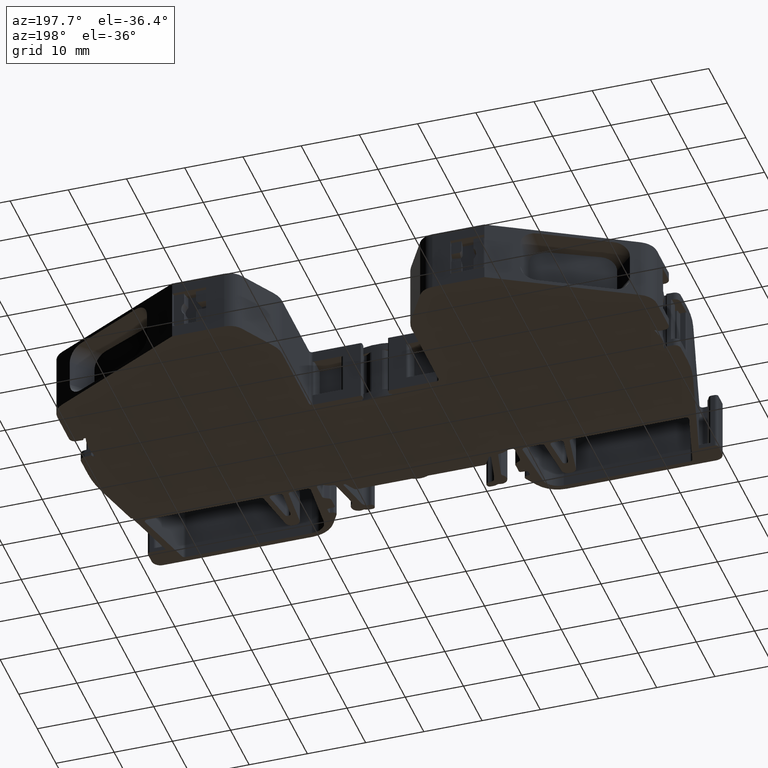
[diagram: clean part render]
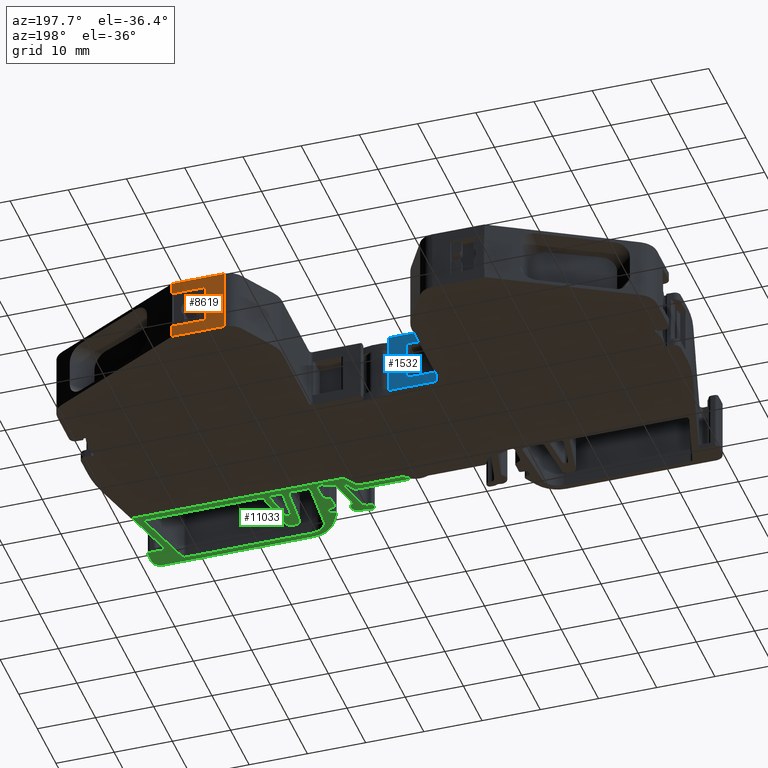
[diagram: same view with three faces highlighted in distinct colors, each labeled with its STEP entity id]
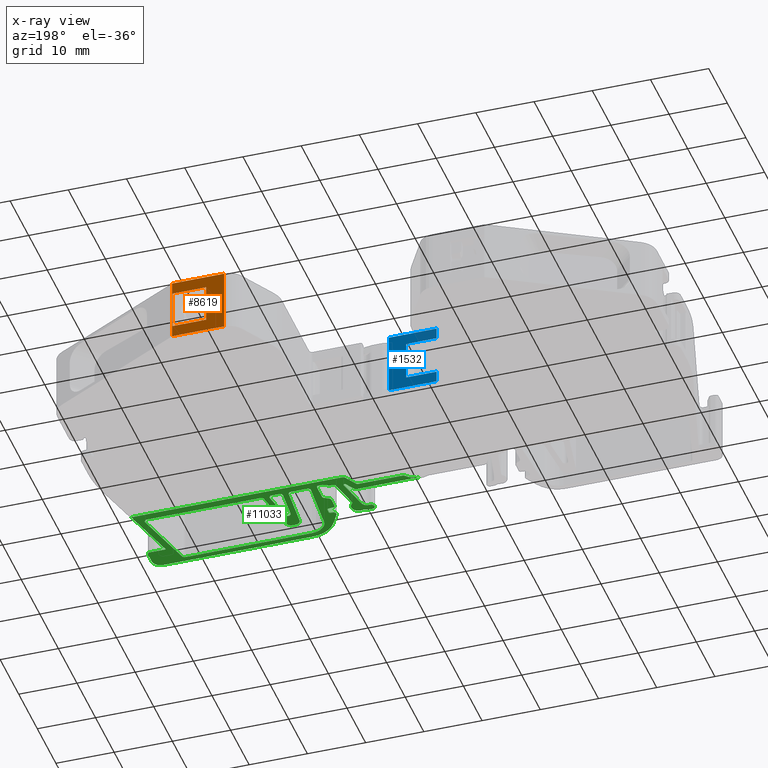
[diagram: x-ray of the same camera — body ghosted, the three highlighted faces saturated]
A machine part, auxiliary view with three faces highlighted in distinct colors.
The next image is the same camera in x-ray (body ghosted, the three faces saturated) — at least one of them is partly hidden behind the body in this view.
Their STEP definitions:

[orange] entity #8619 — the highlighted planar face has unit normal (0, 1, -0).
#1711 = EDGE_CURVE ( 'NONE', #5631, #5627, #15970, .T. ) ;
#1744 = EDGE_CURVE ( 'NONE', #5670, #5626, #16111, .T. ) ;
#1749 = EDGE_CURVE ( 'NONE', #5670, #5631, #16118, .T. ) ;
#1763 = EDGE_CURVE ( 'NONE', #5626, #5627, #16144, .T. ) ;
#3818 = ORIENTED_EDGE ( 'NONE', *, *, #1749, .F. ) ;
#3842 = ORIENTED_EDGE ( 'NONE', *, *, #1711, .F. ) ;
#3844 = ORIENTED_EDGE ( 'NONE', *, *, #11180, .F. ) ;
#3893 = ORIENTED_EDGE ( 'NONE', *, *, #11168, .F. ) ;
#3895 = ORIENTED_EDGE ( 'NONE', *, *, #11215, .F. ) ;
#3934 = ORIENTED_EDGE ( 'NONE', *, *, #1763, .T. ) ;
#3940 = ORIENTED_EDGE ( 'NONE', *, *, #1744, .T. ) ;
#3994 = ORIENTED_EDGE ( 'NONE', *, *, #11141, .T. ) ;
#5153 = EDGE_LOOP ( 'NONE', ( #3934, #3842, #3818, #3940 ) ) ;
#5160 = EDGE_LOOP ( 'NONE', ( #3893, #3895, #3994, #3844 ) ) ;
#5626 = VERTEX_POINT ( 'NONE', #7327 ) ;
#5627 = VERTEX_POINT ( 'NONE', #7281 ) ;
#5631 = VERTEX_POINT ( 'NONE', #7321 ) ;
#5670 = VERTEX_POINT ( 'NONE', #7346 ) ;
#5805 = VERTEX_POINT ( 'NONE', #7412 ) ;
#5839 = VERTEX_POINT ( 'NONE', #7425 ) ;
#5840 = VERTEX_POINT ( 'NONE', #7400 ) ;
#5904 = VERTEX_POINT ( 'NONE', #7495 ) ;
#7281 = CARTESIAN_POINT ( 'NONE',  ( 1356.772827041661900, 454.0739963311599500, 1.950000000000000000 ) ) ;
#7321 = CARTESIAN_POINT ( 'NONE',  ( 1356.772827041661900, 454.0739963311599500, 8.550000000000000700 ) ) ;
#7327 = CARTESIAN_POINT ( 'NONE',  ( 1350.984901664945900, 454.0739963311599500, 1.950000000000000000 ) ) ;
#7346 = CARTESIAN_POINT ( 'NONE',  ( 1350.984901664945900, 454.0739963311599500, 8.550000000000000700 ) ) ;
#7400 = CARTESIAN_POINT ( 'NONE',  ( 1356.825836149942200, 454.0739963311599500, 10.60000000000000000 ) ) ;
#7412 = CARTESIAN_POINT ( 'NONE',  ( 1347.903042648175900, 454.0739963311600000, -0.1000000000000028600 ) ) ;
#7425 = CARTESIAN_POINT ( 'NONE',  ( 1356.825836149942200, 454.0739963311599500, -0.1000000000000000100 ) ) ;
#7495 = CARTESIAN_POINT ( 'NONE',  ( 1347.903042648175900, 454.0739963311600000, 10.59999999999999800 ) ) ;
#8023 = FACE_BOUND ( 'NONE', #5153, .T. ) ;
#8032 = CARTESIAN_POINT ( 'NONE',  ( 1350.550896212335400, 454.0739963311599500, -113.7507434596614900 ) ) ;
#8034 = DIRECTION ( 'NONE',  ( 0.0000000000000000000, 1.000000000000000000, -0.0000000000000000000 ) ) ;
#8036 = DIRECTION ( 'NONE',  ( 0.0000000000000000000, 0.0000000000000000000, 1.000000000000000000 ) ) ;
#8066 = FACE_OUTER_BOUND ( 'NONE', #5160, .T. ) ;
#8067 = PLANE ( 'NONE',  #11679 ) ;
#8619 = ADVANCED_FACE ( 'NONE', ( #8066, #8023 ), #8067, .T. ) ;
#9073 = CARTESIAN_POINT ( 'NONE',  ( 1350.550896212335400, 454.0739963311599500, -0.1000000000000028600 ) ) ;
#9098 = LINE ( 'NONE', #9073, #12158 ) ;
#9100 = DIRECTION ( 'NONE',  ( 1.000000000000000000, 0.0000000000000000000, 0.0000000000000000000 ) ) ;
#11141 = EDGE_CURVE ( 'NONE', #5805, #5904, #15502, .T. ) ;
#11168 = EDGE_CURVE ( 'NONE', #5839, #5840, #15549, .T. ) ;
#11180 = EDGE_CURVE ( 'NONE', #5840, #5904, #15567, .T. ) ;
#11215 = EDGE_CURVE ( 'NONE', #5805, #5839, #9098, .T. ) ;
#11575 = VECTOR ( 'NONE', #15978, 1000.000000000000000 ) ;
#11609 = VECTOR ( 'NONE', #16122, 1000.000000000000000 ) ;
#11611 = VECTOR ( 'NONE', #16125, 1000.000000000000000 ) ;
#11632 = VECTOR ( 'NONE', #16142, 1000.000000000000000 ) ;
#11679 = AXIS2_PLACEMENT_3D ( 'NONE', #8032, #8034, #8036 ) ;
#12059 = VECTOR ( 'NONE', #15473, 1000.000000000000000 ) ;
#12103 = VECTOR ( 'NONE', #15550, 1000.000000000000000 ) ;
#12134 = VECTOR ( 'NONE', #15628, 1000.000000000000000 ) ;
#12158 = VECTOR ( 'NONE', #9100, 1000.000000000000000 ) ;
#15473 = DIRECTION ( 'NONE',  ( 0.0000000000000000000, 0.0000000000000000000, 1.000000000000000000 ) ) ;
#15481 = CARTESIAN_POINT ( 'NONE',  ( 1347.903042648175900, 454.0739963311600000, -113.7507434596614900 ) ) ;
#15502 = LINE ( 'NONE', #15481, #12059 ) ;
#15549 = LINE ( 'NONE', #15566, #12103 ) ;
#15550 = DIRECTION ( 'NONE',  ( 0.0000000000000000000, 0.0000000000000000000, 1.000000000000000000 ) ) ;
#15566 = CARTESIAN_POINT ( 'NONE',  ( 1356.825836149942200, 454.0739963311599500, 0.0000000000000000000 ) ) ;
#15567 = LINE ( 'NONE', #15629, #12134 ) ;
#15628 = DIRECTION ( 'NONE',  ( -1.000000000000000000, 0.0000000000000000000, 0.0000000000000000000 ) ) ;
#15629 = CARTESIAN_POINT ( 'NONE',  ( 1298.507053994932000, 454.0739963311599500, 10.60000000000000000 ) ) ;
#15970 = LINE ( 'NONE', #15984, #11575 ) ;
#15978 = DIRECTION ( 'NONE',  ( 0.0000000000000000000, 0.0000000000000000000, -1.000000000000000000 ) ) ;
#15984 = CARTESIAN_POINT ( 'NONE',  ( 1356.772827041661900, 454.0739963311599500, 500018.1999999999500 ) ) ;
#16090 = CARTESIAN_POINT ( 'NONE',  ( 1350.984901664945900, 454.0739963311599500, 500018.1999999999500 ) ) ;
#16096 = CARTESIAN_POINT ( 'NONE',  ( 1350.984901664945900, 454.0739963311599500, 8.550000000000000700 ) ) ;
#16111 = LINE ( 'NONE', #16090, #11609 ) ;
#16118 = LINE ( 'NONE', #16096, #11611 ) ;
#16122 = DIRECTION ( 'NONE',  ( 0.0000000000000000000, 0.0000000000000000000, -1.000000000000000000 ) ) ;
#16125 = DIRECTION ( 'NONE',  ( 1.000000000000000000, 0.0000000000000000000, 0.0000000000000000000 ) ) ;
#16142 = DIRECTION ( 'NONE',  ( 1.000000000000000000, 0.0000000000000000000, 0.0000000000000000000 ) ) ;
#16144 = LINE ( 'NONE', #16159, #11632 ) ;
#16159 = CARTESIAN_POINT ( 'NONE',  ( 1350.984901664945900, 454.0739963311599500, 1.950000000000000000 ) ) ;

[blue] entity #1532 — the highlighted planar face has unit normal (-0, -1, 0).
#77 = CARTESIAN_POINT ( 'NONE',  ( 1330.007058478346200, 429.0739960545444700, 0.0000000000000000000 ) ) ;
#84 = DIRECTION ( 'NONE',  ( 1.000000000000000000, -5.391711919074419500E-013, 0.0000000000000000000 ) ) ;
#97 = DIRECTION ( 'NONE',  ( -5.391711919074419500E-013, -1.000000000000000000, 0.0000000000000000000 ) ) ;
#107 = PLANE ( 'NONE',  #11853 ) ;
#114 = FACE_OUTER_BOUND ( 'NONE', #5143, .T. ) ;
#1532 = ADVANCED_FACE ( 'NONE', ( #114 ), #107, .F. ) ;
#1703 = EDGE_CURVE ( 'NONE', #5654, #5592, #15996, .T. ) ;
#1714 = EDGE_CURVE ( 'NONE', #5592, #5644, #16004, .T. ) ;
#1767 = EDGE_CURVE ( 'NONE', #5654, #5641, #16146, .T. ) ;
#1901 = VECTOR ( 'NONE', #15352, 1000.000000000000000 ) ;
#1913 = VECTOR ( 'NONE', #15348, 1000.000000000000000 ) ;
#1920 = VECTOR ( 'NONE', #15407, 1000.000000000000000 ) ;
#3701 = ORIENTED_EDGE ( 'NONE', *, *, #1714, .T. ) ;
#3734 = ORIENTED_EDGE ( 'NONE', *, *, #1767, .F. ) ;
#3736 = ORIENTED_EDGE ( 'NONE', *, *, #11184, .F. ) ;
#3748 = ORIENTED_EDGE ( 'NONE', *, *, #11104, .T. ) ;
#3780 = ORIENTED_EDGE ( 'NONE', *, *, #11113, .F. ) ;
#3801 = ORIENTED_EDGE ( 'NONE', *, *, #11100, .F. ) ;
#3869 = ORIENTED_EDGE ( 'NONE', *, *, #11149, .F. ) ;
#3871 = ORIENTED_EDGE ( 'NONE', *, *, #1703, .T. ) ;
#5143 = EDGE_LOOP ( 'NONE', ( #3748, #3869, #3801, #3736, #3780, #3734, #3871, #3701 ) ) ;
#5592 = VERTEX_POINT ( 'NONE', #7235 ) ;
#5641 = VERTEX_POINT ( 'NONE', #7294 ) ;
#5644 = VERTEX_POINT ( 'NONE', #7297 ) ;
#5654 = VERTEX_POINT ( 'NONE', #7317 ) ;
#5719 = VERTEX_POINT ( 'NONE', #7390 ) ;
#5778 = VERTEX_POINT ( 'NONE', #7433 ) ;
#5801 = VERTEX_POINT ( 'NONE', #7418 ) ;
#5824 = VERTEX_POINT ( 'NONE', #7452 ) ;
#7235 = CARTESIAN_POINT ( 'NONE',  ( 1324.635352259573900, 429.0739960545469700, 8.650000000000000400 ) ) ;
#7294 = CARTESIAN_POINT ( 'NONE',  ( 1319.385295467850000, 429.0739963371145200, 1.850000000000000100 ) ) ;
#7297 = CARTESIAN_POINT ( 'NONE',  ( 1319.385295467850000, 429.0739963371145200, 8.650000000000000400 ) ) ;
#7317 = CARTESIAN_POINT ( 'NONE',  ( 1324.635352259573900, 429.0739960545469700, 1.850000000000000100 ) ) ;
#7390 = CARTESIAN_POINT ( 'NONE',  ( 1327.563249270522000, 429.0739960545454900, 10.60000000000000000 ) ) ;
#7418 = CARTESIAN_POINT ( 'NONE',  ( 1319.385295467850000, 429.0739963371145200, 10.60000000000000000 ) ) ;
#7433 = CARTESIAN_POINT ( 'NONE',  ( 1327.563249270522000, 429.0739960545454900, -0.1000000000000000100 ) ) ;
#7452 = CARTESIAN_POINT ( 'NONE',  ( 1319.385295467850000, 429.0739963371145200, -0.09999999999999939500 ) ) ;
#11100 = EDGE_CURVE ( 'NONE', #5778, #5719, #15340, .T. ) ;
#11104 = EDGE_CURVE ( 'NONE', #5644, #5801, #15355, .T. ) ;
#11113 = EDGE_CURVE ( 'NONE', #5641, #5824, #15385, .T. ) ;
#11149 = EDGE_CURVE ( 'NONE', #5719, #5801, #15498, .T. ) ;
#11184 = EDGE_CURVE ( 'NONE', #5824, #5778, #15623, .T. ) ;
#11547 = VECTOR ( 'NONE', #15971, 1000.000000000000000 ) ;
#11574 = VECTOR ( 'NONE', #15986, 1000.000000000000000 ) ;
#11624 = VECTOR ( 'NONE', #16155, 1000.000000000000000 ) ;
#11853 = AXIS2_PLACEMENT_3D ( 'NONE', #77, #97, #84 ) ;
#12065 = VECTOR ( 'NONE', #15482, 1000.000000000000000 ) ;
#12119 = VECTOR ( 'NONE', #15614, 1000.000000000000000 ) ;
#15340 = LINE ( 'NONE', #15360, #1901 ) ;
#15348 = DIRECTION ( 'NONE',  ( 0.0000000000000000000, 0.0000000000000000000, 1.000000000000000000 ) ) ;
#15352 = DIRECTION ( 'NONE',  ( 0.0000000000000000000, 0.0000000000000000000, 1.000000000000000000 ) ) ;
#15355 = LINE ( 'NONE', #15372, #1913 ) ;
#15360 = CARTESIAN_POINT ( 'NONE',  ( 1327.563249270522000, 429.0739960545454900, 0.0000000000000000000 ) ) ;
#15372 = CARTESIAN_POINT ( 'NONE',  ( 1319.385295467850000, 429.0739963371145200, 0.0000000000000000000 ) ) ;
#15385 = LINE ( 'NONE', #15392, #1920 ) ;
#15392 = CARTESIAN_POINT ( 'NONE',  ( 1319.385295467850000, 429.0739963371145200, 10.50000000000000000 ) ) ;
#15407 = DIRECTION ( 'NONE',  ( 0.0000000000000000000, 0.0000000000000000000, -1.000000000000000000 ) ) ;
#15482 = DIRECTION ( 'NONE',  ( -1.000000000000000000, 5.391711919074419500E-013, 0.0000000000000000000 ) ) ;
#15498 = LINE ( 'NONE', #15506, #12065 ) ;
#15506 = CARTESIAN_POINT ( 'NONE',  ( 1330.007058478346200, 429.0739960545444700, 10.60000000000000000 ) ) ;
#15612 = CARTESIAN_POINT ( 'NONE',  ( 1330.007060531894700, 429.0739960545444700, -0.1000000000000000100 ) ) ;
#15614 = DIRECTION ( 'NONE',  ( 1.000000000000000000, -5.391711919074419500E-013, 0.0000000000000000000 ) ) ;
#15623 = LINE ( 'NONE', #15612, #12119 ) ;
#15969 = CARTESIAN_POINT ( 'NONE',  ( 1324.635352259573900, 429.0739960545469700, -11.30269795420121800 ) ) ;
#15971 = DIRECTION ( 'NONE',  ( 0.0000000000000000000, 0.0000000000000000000, 1.000000000000000000 ) ) ;
#15986 = DIRECTION ( 'NONE',  ( -1.000000000000000000, 5.391711919074419500E-013, 0.0000000000000000000 ) ) ;
#15995 = CARTESIAN_POINT ( 'NONE',  ( 1330.007058478346200, 429.0739960545444700, 8.650000000000000400 ) ) ;
#15996 = LINE ( 'NONE', #15969, #11547 ) ;
#16004 = LINE ( 'NONE', #15995, #11574 ) ;
#16146 = LINE ( 'NONE', #16150, #11624 ) ;
#16150 = CARTESIAN_POINT ( 'NONE',  ( 1330.007058478346200, 429.0739960545444700, 1.850000000000000100 ) ) ;
#16155 = DIRECTION ( 'NONE',  ( -1.000000000000000000, 5.391711919074419500E-013, 0.0000000000000000000 ) ) ;

[green] entity #11033 — the highlighted planar face has unit normal (0, 0, -1).
#920 = DIRECTION ( 'NONE',  ( 0.0000000000000000000, 0.0000000000000000000, 1.000000000000000000 ) ) ;
#947 = CARTESIAN_POINT ( 'NONE',  ( 1332.729293080820100, 405.2015322684449600, 0.1499999999999999900 ) ) ;
#963 = DIRECTION ( 'NONE',  ( 1.000000000000000000, 0.0000000000000000000, 0.0000000000000000000 ) ) ;
#975 = LINE ( 'NONE', #989, #10950 ) ;
#976 = CARTESIAN_POINT ( 'NONE',  ( 1340.205312498048000, 406.2015322684449600, 0.1499999999999999900 ) ) ;
#985 = DIRECTION ( 'NONE',  ( 1.000000000000000000, 0.0000000000000000000, 0.0000000000000000000 ) ) ;
#986 = DIRECTION ( 'NONE',  ( -1.000000000000000000, 1.088640402811162000E-014, 0.0000000000000000000 ) ) ;
#989 = CARTESIAN_POINT ( 'NONE',  ( 1340.205312498048000, 405.7015322684449600, 0.1499999999999999900 ) ) ;
#1004 = DIRECTION ( 'NONE',  ( 0.0000000000000000000, 0.0000000000000000000, -1.000000000000000000 ) ) ;
#1139 = LINE ( 'NONE', #1145, #8991 ) ;
#1145 = CARTESIAN_POINT ( 'NONE',  ( 1341.816783949522000, 407.9926677439014500, 0.1499999999999999900 ) ) ;
#1184 = DIRECTION ( 'NONE',  ( -0.5000027472571180200, -0.8660238176489919400, 0.0000000000000000000 ) ) ;
#1319 = DIRECTION ( 'NONE',  ( -1.000000000000000000, 0.0000000000000000000, 0.0000000000000000000 ) ) ;
#1322 = DIRECTION ( 'NONE',  ( -0.0000000000000000000, -0.0000000000000000000, 1.000000000000000000 ) ) ;
#1340 = CARTESIAN_POINT ( 'NONE',  ( 1340.955865043486000, 404.9015270294959800, 0.1500000000000008300 ) ) ;
#1387 = DIRECTION ( 'NONE',  ( 0.0000000000000000000, 0.0000000000000000000, -1.000000000000000000 ) ) ;
#1391 = CARTESIAN_POINT ( 'NONE',  ( 1342.473449871330100, 406.1300494917924800, 0.1500000000000008300 ) ) ;
#1393 = DIRECTION ( 'NONE',  ( -1.000000000000000000, 0.0000000000000000000, 0.0000000000000000000 ) ) ;
#1420 = CARTESIAN_POINT ( 'NONE',  ( 1306.745433194601900, 344.6477605083250100, 0.1500000000000008300 ) ) ;
#1429 = LINE ( 'NONE', #1420, #8524 ) ;
#1430 = DIRECTION ( 'NONE',  ( 0.5000027472573299600, 0.8660238176488696000, 0.0000000000000000000 ) ) ;
#1440 = EDGE_CURVE ( 'NONE', #6439, #6436, #11727, .T. ) ;
#1483 = EDGE_CURVE ( 'NONE', #6418, #6509, #11808, .T. ) ;
#1491 = EDGE_CURVE ( 'NONE', #6403, #6549, #11763, .T. ) ;
#1837 = AXIS2_PLACEMENT_3D ( 'NONE', #15006, #15008, #15016 ) ;
#4496 = AXIS2_PLACEMENT_3D ( 'NONE', #6598, #6586, #6585 ) ;
#4501 = VECTOR ( 'NONE', #6489, 1000.000000000000000 ) ;
#4502 = CIRCLE ( 'NONE', #4504, 1.000000026777359000 ) ;
#4504 = AXIS2_PLACEMENT_3D ( 'NONE', #10546, #10520, #10525 ) ;
#4505 = VECTOR ( 'NONE', #6576, 1000.000000000000000 ) ;
#4511 = AXIS2_PLACEMENT_3D ( 'NONE', #6577, #6556, #6588 ) ;
#4515 = CIRCLE ( 'NONE', #4511, 0.5000000000001669800 ) ;
#4519 = VECTOR ( 'NONE', #6475, 1000.000000000000000 ) ;
#4522 = AXIS2_PLACEMENT_3D ( 'NONE', #6477, #6428, #6492 ) ;
#4527 = CIRCLE ( 'NONE', #4522, 0.5000023835108891000 ) ;
#4551 = VECTOR ( 'NONE', #6426, 1000.000000000000000 ) ;
#4552 = VECTOR ( 'NONE', #6591, 1000.000000000000100 ) ;
#4553 = CIRCLE ( 'NONE', #4555, 4.999999999999893400 ) ;
#4555 = AXIS2_PLACEMENT_3D ( 'NONE', #6580, #6578, #6553 ) ;
#4556 = CIRCLE ( 'NONE', #4496, 0.2999969637338395500 ) ;
#4557 = CIRCLE ( 'NONE', #4583, 0.5000000403820870100 ) ;
#4558 = VECTOR ( 'NONE', #10635, 1000.000000000000000 ) ;
#4559 = CIRCLE ( 'NONE', #4590, 1.250000258073980000 ) ;
#4563 = CIRCLE ( 'NONE', #4596, 0.4999981970457145800 ) ;
#4564 = CIRCLE ( 'NONE', #4597, 0.2000001754571822900 ) ;
#4566 = VECTOR ( 'NONE', #10526, 1000.000000000000200 ) ;
#4567 = AXIS2_PLACEMENT_3D ( 'NONE', #10569, #10593, #10579 ) ;
#4568 = CIRCLE ( 'NONE', #4598, 0.4999998930665938700 ) ;
#4570 = VECTOR ( 'NONE', #10609, 1000.000000000000100 ) ;
#4572 = VECTOR ( 'NONE', #10514, 999.9999999999998900 ) ;
#4574 = AXIS2_PLACEMENT_3D ( 'NONE', #10535, #10523, #10516 ) ;
#4575 = CIRCLE ( 'NONE', #4574, 0.3000001797137663600 ) ;
#4577 = VECTOR ( 'NONE', #10617, 1000.000000000000200 ) ;
#4578 = CIRCLE ( 'NONE', #4589, 0.4999983151467990400 ) ;
#4582 = VECTOR ( 'NONE', #10543, 1000.000000000000000 ) ;
#4583 = AXIS2_PLACEMENT_3D ( 'NONE', #10557, #10527, #10538 ) ;
#4584 = VECTOR ( 'NONE', #10582, 1000.000000000000000 ) ;
#4586 = AXIS2_PLACEMENT_3D ( 'NONE', #10611, #10643, #10621 ) ;
#4588 = AXIS2_PLACEMENT_3D ( 'NONE', #10596, #10597, #10598 ) ;
#4589 = AXIS2_PLACEMENT_3D ( 'NONE', #10519, #10541, #10572 ) ;
#4590 = AXIS2_PLACEMENT_3D ( 'NONE', #10604, #10608, #10633 ) ;
#4596 = AXIS2_PLACEMENT_3D ( 'NONE', #10524, #10549, #10529 ) ;
#4597 = AXIS2_PLACEMENT_3D ( 'NONE', #10570, #10589, #10573 ) ;
#4598 = AXIS2_PLACEMENT_3D ( 'NONE', #10583, #10574, #10585 ) ;
#4599 = VECTOR ( 'NONE', #10616, 999.9999999999998900 ) ;
#4603 = VECTOR ( 'NONE', #10568, 1000.000000000000100 ) ;
#4604 = CIRCLE ( 'NONE', #4605, 0.5000000000001669800 ) ;
#4605 = AXIS2_PLACEMENT_3D ( 'NONE', #10584, #10575, #10560 ) ;
#4607 = VECTOR ( 'NONE', #10612, 1000.000000000000200 ) ;
#4610 = CIRCLE ( 'NONE', #4588, 0.1999999999997559300 ) ;
#4612 = CIRCLE ( 'NONE', #4615, 0.4999976099153702300 ) ;
#4614 = CIRCLE ( 'NONE', #4567, 0.4999999999999449300 ) ;
#4615 = AXIS2_PLACEMENT_3D ( 'NONE', #10588, #10591, #10587 ) ;
#4616 = CIRCLE ( 'NONE', #4586, 3.427201790506817500 ) ;
#4630 = CIRCLE ( 'NONE', #4649, 2.250000040364019700 ) ;
#4634 = AXIS2_PLACEMENT_3D ( 'NONE', #9627, #9625, #9652 ) ;
#4649 = AXIS2_PLACEMENT_3D ( 'NONE', #9615, #9639, #9630 ) ;
#4658 = CIRCLE ( 'NONE', #4672, 0.5035014395204928700 ) ;
#4668 = CIRCLE ( 'NONE', #4634, 1.500000000000056800 ) ;
#4672 = AXIS2_PLACEMENT_3D ( 'NONE', #9740, #9702, #9722 ) ;
#4711 = CIRCLE ( 'NONE', #4717, 0.4999999999999449300 ) ;
#4717 = AXIS2_PLACEMENT_3D ( 'NONE', #9784, #9811, #9790 ) ;
#5350 = EDGE_LOOP ( 'NONE', ( #14056, #14098, #14110, #14116, #14081, #14066, #14092 ) ) ;
#5375 = EDGE_LOOP ( 'NONE', ( #14068, #14072, #14103, #14061, #14085, #14095, #14091, #14064, #14143, #14149, #14178, #14182, #14171, #14120, #14078, #14133, #14163, #14181 ) ) ;
#5378 = EDGE_LOOP ( 'NONE', ( #14029, #14111, #14069, #14058, #14018, #14105, #14087, #14112, #14031, #14115, #14060, #14104, #13999, #14084, #14101, #14106, #14089, #14036, #14021, #14093, #14096, #14073, #14097, #14079, #14099, #14070, #14067, #14107, #14090, #14055, #14094, #14065, #14017, #14062, #14080, #14114, #14088, #14032, #14022, #14000, #14082, #14037, #14059, #14063, #14038, #14083, #14086, #14102, #14100, #14109 ) ) ;
#5444 = CARTESIAN_POINT ( 'NONE',  ( 1342.145435216868000, 399.8311015867765300, 0.1500000000000008300 ) ) ;
#5445 = DIRECTION ( 'NONE',  ( -0.0000000000000000000, -0.0000000000000000000, 1.000000000000000000 ) ) ;
#5489 = DIRECTION ( 'NONE',  ( -1.000000000000000000, 3.108623827146499600E-013, 0.0000000000000000000 ) ) ;
#5552 = DIRECTION ( 'NONE',  ( -0.0000000000000000000, -0.0000000000000000000, 1.000000000000000000 ) ) ;
#5567 = DIRECTION ( 'NONE',  ( -1.000000000000000000, 3.330669073875836700E-013, 0.0000000000000000000 ) ) ;
#5574 = CARTESIAN_POINT ( 'NONE',  ( 1354.755093238640000, 406.4426663702724900, 0.1500000000000008300 ) ) ;
#6004 = VERTEX_POINT ( 'NONE', #7560 ) ;
#6043 = VERTEX_POINT ( 'NONE', #7554 ) ;
#6047 = VERTEX_POINT ( 'NONE', #7539 ) ;
#6055 = VERTEX_POINT ( 'NONE', #7572 ) ;
#6060 = VERTEX_POINT ( 'NONE', #7584 ) ;
#6062 = VERTEX_POINT ( 'NONE', #7615 ) ;
#6063 = VERTEX_POINT ( 'NONE', #7574 ) ;
#6076 = VERTEX_POINT ( 'NONE', #7599 ) ;
#6078 = VERTEX_POINT ( 'NONE', #7620 ) ;
#6082 = VERTEX_POINT ( 'NONE', #7586 ) ;
#6084 = VERTEX_POINT ( 'NONE', #7619 ) ;
#6086 = VERTEX_POINT ( 'NONE', #7600 ) ;
#6088 = VERTEX_POINT ( 'NONE', #7601 ) ;
#6104 = VERTEX_POINT ( 'NONE', #7581 ) ;
#6106 = VERTEX_POINT ( 'NONE', #7625 ) ;
#6116 = VERTEX_POINT ( 'NONE', #7571 ) ;
#6135 = VERTEX_POINT ( 'NONE', #7591 ) ;
#6138 = VERTEX_POINT ( 'NONE', #7593 ) ;
#6142 = VERTEX_POINT ( 'NONE', #7595 ) ;
#6145 = VERTEX_POINT ( 'NONE', #7611 ) ;
#6149 = VERTEX_POINT ( 'NONE', #7614 ) ;
#6151 = VERTEX_POINT ( 'NONE', #7674 ) ;
#6152 = VERTEX_POINT ( 'NONE', #7627 ) ;
#6172 = VERTEX_POINT ( 'NONE', #7665 ) ;
#6203 = VERTEX_POINT ( 'NONE', #7632 ) ;
#6217 = VERTEX_POINT ( 'NONE', #7649 ) ;
#6219 = VERTEX_POINT ( 'NONE', #7668 ) ;
#6230 = VERTEX_POINT ( 'NONE', #7645 ) ;
#6241 = VERTEX_POINT ( 'NONE', #7653 ) ;
#6245 = VERTEX_POINT ( 'NONE', #7680 ) ;
#6335 = VERTEX_POINT ( 'NONE', #7724 ) ;
#6345 = VERTEX_POINT ( 'NONE', #7776 ) ;
#6400 = VERTEX_POINT ( 'NONE', #7782 ) ;
#6403 = VERTEX_POINT ( 'NONE', #7754 ) ;
#6418 = VERTEX_POINT ( 'NONE', #7736 ) ;
#6419 = VERTEX_POINT ( 'NONE', #7758 ) ;
#6422 = LINE ( 'NONE', #6502, #4551 ) ;
#6426 = DIRECTION ( 'NONE',  ( 1.000000000000000000, 1.938070292672565300E-014, 0.0000000000000000000 ) ) ;
#6428 = DIRECTION ( 'NONE',  ( -0.0000000000000000000, -0.0000000000000000000, 1.000000000000000000 ) ) ;
#6436 = VERTEX_POINT ( 'NONE', #7744 ) ;
#6437 = CARTESIAN_POINT ( 'NONE',  ( 1345.809140418024100, 395.8762483638644800, 0.1499999999999999900 ) ) ;
#6439 = VERTEX_POINT ( 'NONE', #7835 ) ;
#6443 = LINE ( 'NONE', #6437, #4519 ) ;
#6475 = DIRECTION ( 'NONE',  ( 0.0000000000000000000, -1.000000000000000000, 0.0000000000000000000 ) ) ;
#6477 = CARTESIAN_POINT ( 'NONE',  ( 1378.505503351194000, 397.5762478239644800, 0.1500000000000008300 ) ) ;
#6487 = CARTESIAN_POINT ( 'NONE',  ( 1347.259686424271900, 331.2175553138799800, 0.1500000000000008300 ) ) ;
#6489 = DIRECTION ( 'NONE',  ( -2.944951164242749900E-013, -1.000000000000000000, 0.0000000000000000000 ) ) ;
#6492 = DIRECTION ( 'NONE',  ( -1.000000000000000000, 0.0000000000000000000, 0.0000000000000000000 ) ) ;
#6502 = CARTESIAN_POINT ( 'NONE',  ( 1330.007060531839900, 394.0762368409450000, 0.1500000000000008300 ) ) ;
#6509 = VERTEX_POINT ( 'NONE', #7831 ) ;
#6519 = LINE ( 'NONE', #6487, #4501 ) ;
#6538 = CARTESIAN_POINT ( 'NONE',  ( 1284.302739126161900, 399.6310997004270000, 0.1499999999999999900 ) ) ;
#6549 = VERTEX_POINT ( 'NONE', #7878 ) ;
#6553 = DIRECTION ( 'NONE',  ( -1.000000000000000000, -1.110223024625180200E-014, 0.0000000000000000000 ) ) ;
#6556 = DIRECTION ( 'NONE',  ( 0.0000000000000000000, 0.0000000000000000000, -1.000000000000000000 ) ) ;
#6560 = CARTESIAN_POINT ( 'NONE',  ( 1338.948460910525900, 383.7615454842788300, 0.1499999999999999900 ) ) ;
#6573 = LINE ( 'NONE', #6560, #4552 ) ;
#6575 = LINE ( 'NONE', #6538, #4505 ) ;
#6576 = DIRECTION ( 'NONE',  ( -1.000000000000000000, 0.0000000000000000000, 0.0000000000000000000 ) ) ;
#6577 = CARTESIAN_POINT ( 'NONE',  ( 1341.591349994545900, 398.1711345781694700, 0.1500000000000008300 ) ) ;
#6578 = DIRECTION ( 'NONE',  ( -0.0000000000000000000, -0.0000000000000000000, 1.000000000000000000 ) ) ;
#6580 = CARTESIAN_POINT ( 'NONE',  ( 1351.807268331745900, 399.0762368409454600, 0.1500000000000008300 ) ) ;
#6585 = DIRECTION ( 'NONE',  ( -1.000000000000000000, 0.0000000000000000000, 0.0000000000000000000 ) ) ;
#6586 = DIRECTION ( 'NONE',  ( -0.0000000000000000000, -0.0000000000000000000, 1.000000000000000000 ) ) ;
#6588 = DIRECTION ( 'NONE',  ( -1.000000000000000000, 0.0000000000000000000, 0.0000000000000000000 ) ) ;
#6591 = DIRECTION ( 'NONE',  ( 0.2164402614427544100, 0.9762958635713827600, 0.0000000000000000000 ) ) ;
#6598 = CARTESIAN_POINT ( 'NONE',  ( 1344.248839326616000, 406.2838827184224900, 0.1500000000000008300 ) ) ;
#7539 = CARTESIAN_POINT ( 'NONE',  ( 1340.205312498048000, 405.7015322684449600, 0.1499999999999999900 ) ) ;
#7554 = CARTESIAN_POINT ( 'NONE',  ( 1353.963924045760200, 398.0762402979685200, 0.1500000000000008300 ) ) ;
#7560 = CARTESIAN_POINT ( 'NONE',  ( 1349.132330078230100, 396.4547189663064700, 0.1500000000000008300 ) ) ;
#7571 = CARTESIAN_POINT ( 'NONE',  ( 1342.249795858346000, 408.2426663702724500, 0.1499999999999999900 ) ) ;
#7572 = CARTESIAN_POINT ( 'NONE',  ( 1378.507058706203500, 408.2426663702729600, 0.1499999999999999900 ) ) ;
#7574 = CARTESIAN_POINT ( 'NONE',  ( 1348.691359069954200, 406.9426663702724900, 0.1500000000000008300 ) ) ;
#7581 = CARTESIAN_POINT ( 'NONE',  ( 1341.816783949522000, 407.9926677439014500, 0.1499999999999999900 ) ) ;
#7584 = CARTESIAN_POINT ( 'NONE',  ( 1352.986550919660000, 406.4079442635670000, 0.1500000000000008300 ) ) ;
#7586 = CARTESIAN_POINT ( 'NONE',  ( 1353.496927466935900, 398.0762402979685200, 0.1500000000000008300 ) ) ;
#7591 = CARTESIAN_POINT ( 'NONE',  ( 1351.656348416310000, 395.0762402979685200, 0.1500000000000008300 ) ) ;
#7593 = CARTESIAN_POINT ( 'NONE',  ( 1351.480503826380300, 406.9426663702724900, 0.1500000000000008300 ) ) ;
#7595 = CARTESIAN_POINT ( 'NONE',  ( 1351.979296744638100, 406.4773884769784900, 0.1500000000000008300 ) ) ;
#7599 = CARTESIAN_POINT ( 'NONE',  ( 1354.755093238638000, 406.9426663702724900, 0.1500000000000008300 ) ) ;
#7600 = CARTESIAN_POINT ( 'NONE',  ( 1352.499341630415800, 399.0067960845575500, 0.1500000000000008300 ) ) ;
#7601 = CARTESIAN_POINT ( 'NONE',  ( 1356.272587265096000, 406.4106499849520400, 0.1500000000000008300 ) ) ;
#7611 = CARTESIAN_POINT ( 'NONE',  ( 1348.819837114173900, 397.3968473904780000, 0.1500000000000008300 ) ) ;
#7614 = CARTESIAN_POINT ( 'NONE',  ( 1348.192566105926100, 406.4079449210380500, 0.1500000000000008300 ) ) ;
#7615 = CARTESIAN_POINT ( 'NONE',  ( 1376.232981779935900, 406.8238270224470100, 0.1500000000000008300 ) ) ;
#7619 = CARTESIAN_POINT ( 'NONE',  ( 1356.764991340202000, 406.8238270224470100, 0.1500000000000008300 ) ) ;
#7620 = CARTESIAN_POINT ( 'NONE',  ( 1373.836242788602200, 395.4463920610965000, 0.1500000000000008300 ) ) ;
#7625 = CARTESIAN_POINT ( 'NONE',  ( 1373.353397642224100, 395.0762402979689800, 0.1500000000000008300 ) ) ;
#7627 = CARTESIAN_POINT ( 'NONE',  ( 1375.783184358594300, 398.0762389074420200, 0.1500000000000003800 ) ) ;
#7632 = CARTESIAN_POINT ( 'NONE',  ( 1353.485343837920000, 406.9426663702724900, 0.1500000000000008300 ) ) ;
#7645 = CARTESIAN_POINT ( 'NONE',  ( 1332.729293080820100, 405.7015322684449600, 0.1499999999999999900 ) ) ;
#7649 = CARTESIAN_POINT ( 'NONE',  ( 1332.340403017100000, 405.5158004951849800, 0.1499999999999999900 ) ) ;
#7653 = CARTESIAN_POINT ( 'NONE',  ( 1378.505499656693900, 398.0762502074615000, 0.1500000000000008300 ) ) ;
#7665 = CARTESIAN_POINT ( 'NONE',  ( 1354.948732195971800, 398.9025943729579900, 0.1500000000000008300 ) ) ;
#7668 = CARTESIAN_POINT ( 'NONE',  ( 1354.337149612566000, 401.1929359822290200, 0.1500000000000008300 ) ) ;
#7674 = CARTESIAN_POINT ( 'NONE',  ( 1340.638324406872000, 405.9515308948165300, 0.1499999999999999900 ) ) ;
#7680 = CARTESIAN_POINT ( 'NONE',  ( 1353.345952619200000, 401.2450368380284500, 0.1500000000000008300 ) ) ;
#7724 = CARTESIAN_POINT ( 'NONE',  ( 1330.033742804432000, 404.4015270294959800, 0.1499999999999999900 ) ) ;
#7736 = CARTESIAN_POINT ( 'NONE',  ( 1355.247497313743900, 406.3558434077675100, 0.1500000000000008300 ) ) ;
#7744 = CARTESIAN_POINT ( 'NONE',  ( 1342.978898438260100, 400.7626807319759300, 0.1500000000000008300 ) ) ;
#7754 = CARTESIAN_POINT ( 'NONE',  ( 1342.673449871329900, 406.1300494917924800, 0.1500000000000008300 ) ) ;
#7758 = CARTESIAN_POINT ( 'NONE',  ( 1376.715947196244100, 406.1944268421899600, 0.1500000000000008300 ) ) ;
#7776 = CARTESIAN_POINT ( 'NONE',  ( 1340.955865043486000, 404.4015270294959800, 0.1500000000000008300 ) ) ;
#7782 = CARTESIAN_POINT ( 'NONE',  ( 1376.732981779935900, 406.3238270224470100, 0.1500000000000008300 ) ) ;
#7831 = CARTESIAN_POINT ( 'NONE',  ( 1355.255093238640000, 406.4426663702724900, 0.1500000000000008300 ) ) ;
#7835 = CARTESIAN_POINT ( 'NONE',  ( 1343.395435474941900, 399.8311015867765300, 0.1500000000000008300 ) ) ;
#7878 = CARTESIAN_POINT ( 'NONE',  ( 1342.668709010580000, 406.0867612885535300, 0.1500000000000008300 ) ) ;
#8391 = VECTOR ( 'NONE', #8936, 1000.000000000000000 ) ;
#8432 = AXIS2_PLACEMENT_3D ( 'NONE', #1391, #1387, #1393 ) ;
#8440 = CIRCLE ( 'NONE', #8458, 0.5000000000001669800 ) ;
#8458 = AXIS2_PLACEMENT_3D ( 'NONE', #1340, #1322, #1319 ) ;
#8487 = CIRCLE ( 'NONE', #8432, 0.1999999999999779700 ) ;
#8524 = VECTOR ( 'NONE', #1430, 1000.000000000000100 ) ;
#8913 = LINE ( 'NONE', #8922, #8391 ) ;
#8922 = CARTESIAN_POINT ( 'NONE',  ( 1330.007060531849900, 398.0762402979714800, 0.1500000000000008300 ) ) ;
#8936 = DIRECTION ( 'NONE',  ( 1.000000000000000000, -1.188684323366580000E-013, 0.0000000000000000000 ) ) ;
#8991 = VECTOR ( 'NONE', #1184, 1000.000000000000200 ) ;
#9130 = LINE ( 'NONE', #9142, #12187 ) ;
#9135 = LINE ( 'NONE', #9148, #12179 ) ;
#9138 = DIRECTION ( 'NONE',  ( -1.000000000000000000, -1.425703166515882100E-014, 0.0000000000000000000 ) ) ;
#9142 = CARTESIAN_POINT ( 'NONE',  ( 1369.106084440662700, 373.1550262100525400, 0.1499999999999999900 ) ) ;
#9148 = CARTESIAN_POINT ( 'NONE',  ( 1284.302739126161700, 406.8238270224458700, 0.1499999999999999900 ) ) ;
#9157 = DIRECTION ( 'NONE',  ( -0.2588002801198385800, -0.9659308541556652600, 0.0000000000000000000 ) ) ;
#9166 = DIRECTION ( 'NONE',  ( -0.0000000000000000000, -0.0000000000000000000, 1.000000000000000000 ) ) ;
#9181 = CARTESIAN_POINT ( 'NONE',  ( 1356.764991340202000, 406.3238270224470100, 0.1500000000000008300 ) ) ;
#9187 = DIRECTION ( 'NONE',  ( -1.000000000000000000, 1.110223024625278800E-013, 0.0000000000000000000 ) ) ;
#9210 = LINE ( 'NONE', #9219, #11894 ) ;
#9211 = DIRECTION ( 'NONE',  ( 0.0000000000000000000, 0.0000000000000000000, -1.000000000000000000 ) ) ;
#9219 = CARTESIAN_POINT ( 'NONE',  ( 1358.084664127140100, 333.1721010028584800, 0.1500000000000008300 ) ) ;
#9220 = DIRECTION ( 'NONE',  ( 0.06944421341129711200, -0.9975858365191870900, 0.0000000000000000000 ) ) ;
#9226 = DIRECTION ( 'NONE',  ( -1.000000000000000000, 0.0000000000000000000, 0.0000000000000000000 ) ) ;
#9244 = CARTESIAN_POINT ( 'NONE',  ( 1353.485343837920000, 406.4426663702724900, 0.1500000000000008300 ) ) ;
#9269 = LINE ( 'NONE', #9270, #11942 ) ;
#9270 = CARTESIAN_POINT ( 'NONE',  ( 1378.507058706204100, 408.2426663702729600, 0.1499999999999999900 ) ) ;
#9271 = DIRECTION ( 'NONE',  ( -1.000000000000000000, -1.224828282580384200E-014, 0.0000000000000000000 ) ) ;
#9381 = DIRECTION ( 'NONE',  ( -1.000000000000000000, 0.0000000000000000000, 0.0000000000000000000 ) ) ;
#9382 = DIRECTION ( 'NONE',  ( 1.000000000000000000, 2.185909723596815000E-013, 0.0000000000000000000 ) ) ;
#9383 = LINE ( 'NONE', #9385, #11959 ) ;
#9384 = DIRECTION ( 'NONE',  ( -1.000000000000000000, 0.0000000000000000000, 0.0000000000000000000 ) ) ;
#9385 = CARTESIAN_POINT ( 'NONE',  ( 1357.087078290613800, 333.1026567894450100, 0.1500000000000008300 ) ) ;
#9389 = DIRECTION ( 'NONE',  ( -0.0000000000000000000, -0.0000000000000000000, 1.000000000000000000 ) ) ;
#9391 = DIRECTION ( 'NONE',  ( 0.1736459250102115600, 0.9848081502137093800, 0.0000000000000000000 ) ) ;
#9392 = LINE ( 'NONE', #9403, #11961 ) ;
#9394 = DIRECTION ( 'NONE',  ( -0.0000000000000000000, -0.0000000000000000000, 1.000000000000000000 ) ) ;
#9396 = CARTESIAN_POINT ( 'NONE',  ( 1350.815008970282200, 397.5357331874144500, 0.1500000000000008300 ) ) ;
#9400 = CARTESIAN_POINT ( 'NONE',  ( 1353.844745537460100, 401.2797589447345100, 0.1500000000000008300 ) ) ;
#9401 = DIRECTION ( 'NONE',  ( -0.0000000000000000000, -0.0000000000000000000, 1.000000000000000000 ) ) ;
#9402 = DIRECTION ( 'NONE',  ( -1.000000000000000000, 0.0000000000000000000, 0.0000000000000000000 ) ) ;
#9403 = CARTESIAN_POINT ( 'NONE',  ( 1354.844534978285800, 324.5628890335035000, 0.1500000000000008300 ) ) ;
#9404 = LINE ( 'NONE', #9416, #11973 ) ;
#9405 = LINE ( 'NONE', #9417, #11993 ) ;
#9406 = DIRECTION ( 'NONE',  ( 0.2588003605137015300, 0.9659308326158648800, 0.0000000000000000000 ) ) ;
#9407 = CARTESIAN_POINT ( 'NONE',  ( 1353.963924045760200, 399.0762402979685200, 0.1500000000000008300 ) ) ;
#9408 = DIRECTION ( 'NONE',  ( 0.1736459250103234700, 0.9848081502136896100, 0.0000000000000000000 ) ) ;
#9409 = LINE ( 'NONE', #9415, #11954 ) ;
#9410 = CARTESIAN_POINT ( 'NONE',  ( 1354.755093238640000, 406.4426663702724900, 0.1500000000000008300 ) ) ;
#9415 = CARTESIAN_POINT ( 'NONE',  ( 1284.302739126159400, 406.9426663702574800, 0.1499999999999999900 ) ) ;
#9416 = CARTESIAN_POINT ( 'NONE',  ( 1341.637182239229800, 329.1668784978755300, 0.1500000000000008300 ) ) ;
#9417 = CARTESIAN_POINT ( 'NONE',  ( 1342.621990389434100, 328.9932325728650000, 0.1500000000000008300 ) ) ;
#9424 = DIRECTION ( 'NONE',  ( -0.0000000000000000000, -0.0000000000000000000, 1.000000000000000000 ) ) ;
#9425 = DIRECTION ( 'NONE',  ( -1.000000000000000000, 1.110223024624785800E-013, 0.0000000000000000000 ) ) ;
#9426 = DIRECTION ( 'NONE',  ( -1.000000000000000000, 0.0000000000000000000, 0.0000000000000000000 ) ) ;
#9443 = DIRECTION ( 'NONE',  ( 0.06944421341122181100, -0.9975858365191923000, 0.0000000000000000000 ) ) ;
#9444 = CARTESIAN_POINT ( 'NONE',  ( 1376.232981779935900, 406.3238270224470100, 0.1500000000000008300 ) ) ;
#9446 = DIRECTION ( 'NONE',  ( -1.000000000000000000, 0.0000000000000000000, 0.0000000000000000000 ) ) ;
#9451 = DIRECTION ( 'NONE',  ( -0.0000000000000000000, -0.0000000000000000000, 1.000000000000000000 ) ) ;
#9460 = DIRECTION ( 'NONE',  ( -0.0000000000000000000, -0.0000000000000000000, 1.000000000000000000 ) ) ;
#9463 = CARTESIAN_POINT ( 'NONE',  ( 1373.353397642224100, 395.5762402979689800, 0.1500000000000008300 ) ) ;
#9471 = DIRECTION ( 'NONE',  ( 0.0000000000000000000, 0.0000000000000000000, -1.000000000000000000 ) ) ;
#9488 = CARTESIAN_POINT ( 'NONE',  ( 1351.656348416310000, 398.0762402979685200, 0.1500000000000008300 ) ) ;
#9490 = CARTESIAN_POINT ( 'NONE',  ( 1351.480503826380300, 406.4426663702724900, 0.1500000000000008300 ) ) ;
#9494 = DIRECTION ( 'NONE',  ( -0.0000000000000000000, -0.0000000000000000000, 1.000000000000000000 ) ) ;
#9499 = DIRECTION ( 'NONE',  ( -1.000000000000000000, 0.0000000000000000000, 0.0000000000000000000 ) ) ;
#9531 = DIRECTION ( 'NONE',  ( -1.000000000000000000, -5.551115123125983400E-014, 0.0000000000000000000 ) ) ;
#9615 = CARTESIAN_POINT ( 'NONE',  ( 1340.467709285127700, 400.6811010676145200, 0.1500000000000008300 ) ) ;
#9625 = DIRECTION ( 'NONE',  ( -0.0000000000000000000, -0.0000000000000000000, 1.000000000000000000 ) ) ;
#9627 = CARTESIAN_POINT ( 'NONE',  ( 1377.505505734704000, 395.5762368409460200, 0.1500000000000008300 ) ) ;
#9630 = DIRECTION ( 'NONE',  ( -1.000000000000000000, 1.480297339610986200E-013, 0.0000000000000000000 ) ) ;
#9639 = DIRECTION ( 'NONE',  ( -0.0000000000000000000, -0.0000000000000000000, 1.000000000000000000 ) ) ;
#9652 = DIRECTION ( 'NONE',  ( -1.000000000000000000, 0.0000000000000000000, 0.0000000000000000000 ) ) ;
#9702 = DIRECTION ( 'NONE',  ( -0.0000000000000000000, -0.0000000000000000000, 1.000000000000000000 ) ) ;
#9722 = DIRECTION ( 'NONE',  ( -1.000000000000000000, 9.922521007231129100E-013, 0.0000000000000000000 ) ) ;
#9740 = CARTESIAN_POINT ( 'NONE',  ( 1346.312641857543900, 402.8577594299050000, 0.1500000000000008300 ) ) ;
#9784 = CARTESIAN_POINT ( 'NONE',  ( 1376.232981779935900, 406.3238270224470100, 0.1500000000000008300 ) ) ;
#9790 = DIRECTION ( 'NONE',  ( -1.000000000000000000, -1.110223024625278800E-013, 0.0000000000000000000 ) ) ;
#9811 = DIRECTION ( 'NONE',  ( -0.0000000000000000000, -0.0000000000000000000, 1.000000000000000000 ) ) ;
#10155 = CARTESIAN_POINT ( 'NONE',  ( 1340.145431779646100, 398.4311010272554700, 0.1500000000000008300 ) ) ;
#10158 = CARTESIAN_POINT ( 'NONE',  ( 1347.259686424291900, 399.7138657706354900, 0.1500000000000008300 ) ) ;
#10169 = CARTESIAN_POINT ( 'NONE',  ( 1339.645438176566100, 398.9310973435399900, 0.1500000000000008300 ) ) ;
#10173 = CARTESIAN_POINT ( 'NONE',  ( 1346.758088127320000, 403.6963345683484500, 0.1500000000000008300 ) ) ;
#10174 = CARTESIAN_POINT ( 'NONE',  ( 1344.223629604930200, 406.5828185780679900, 0.1500000000000008300 ) ) ;
#10176 = CARTESIAN_POINT ( 'NONE',  ( 1346.508090642438000, 407.3111708574604700, 0.1500000000000008300 ) ) ;
#10177 = CARTESIAN_POINT ( 'NONE',  ( 1347.008088957584100, 404.1293462379775300, 0.1500000000000008300 ) ) ;
#10184 = CARTESIAN_POINT ( 'NONE',  ( 1342.824136075780000, 401.2435315397429500, 0.1500000000000008300 ) ) ;
#10185 = CARTESIAN_POINT ( 'NONE',  ( 1339.645436012599900, 399.1310960544280400, 0.1500000000000008300 ) ) ;
#10186 = CARTESIAN_POINT ( 'NONE',  ( 1377.505505734704000, 394.0762368409460200, 0.1500000000000008300 ) ) ;
#10189 = CARTESIAN_POINT ( 'NONE',  ( 1347.077121217542100, 400.6670885489425000, 0.1500000000000008300 ) ) ;
#10190 = CARTESIAN_POINT ( 'NONE',  ( 1346.060892597381800, 403.2938053100675100, 0.1500000000000008300 ) ) ;
#10191 = CARTESIAN_POINT ( 'NONE',  ( 1346.257889449416100, 398.6880382895155300, 0.1500000000000008300 ) ) ;
#10193 = CARTESIAN_POINT ( 'NONE',  ( 1347.008088957584100, 406.8111727121225300, 0.1500000000000008300 ) ) ;
#10195 = CARTESIAN_POINT ( 'NONE',  ( 1343.955953774258000, 406.3488152331529500, 0.1500000000000008300 ) ) ;
#10196 = CARTESIAN_POINT ( 'NONE',  ( 1340.145436012586100, 399.6310997004270000, 0.1500000000000008300 ) ) ;
#10200 = CARTESIAN_POINT ( 'NONE',  ( 1346.230768199054200, 407.3111706435639700, 0.1500000000000008300 ) ) ;
#10201 = CARTESIAN_POINT ( 'NONE',  ( 1341.411232815256200, 400.4146596745040400, 0.1500000000000008300 ) ) ;
#10203 = CARTESIAN_POINT ( 'NONE',  ( 1341.749660413666100, 398.6454106699120000, 0.1500000000000008300 ) ) ;
#10205 = CARTESIAN_POINT ( 'NONE',  ( 1346.082990248493800, 400.7540613590375100, 0.1500000000000008300 ) ) ;
#10209 = CARTESIAN_POINT ( 'NONE',  ( 1379.005505734704000, 395.5762368409460200, 0.1500000000000008300 ) ) ;
#10210 = CARTESIAN_POINT ( 'NONE',  ( 1342.300245107799800, 406.2300500412440000, 0.1500000000000008300 ) ) ;
#10211 = CARTESIAN_POINT ( 'NONE',  ( 1351.807268331748000, 394.0762368409455100, 0.1500000000000008300 ) ) ;
#10215 = CARTESIAN_POINT ( 'NONE',  ( 1341.388876952309800, 404.6515256558675400, 0.1500000000000008300 ) ) ;
#10220 = CARTESIAN_POINT ( 'NONE',  ( 1347.477143735460000, 396.5762326448234500, 0.1500000000000008300 ) ) ;
#10223 = CARTESIAN_POINT ( 'NONE',  ( 1347.259686424291900, 400.4678497674534600, 0.1500000000000008300 ) ) ;
#10232 = CARTESIAN_POINT ( 'NONE',  ( 1340.467714093946100, 398.4311010272554700, 0.1500000000000008300 ) ) ;
#10233 = CARTESIAN_POINT ( 'NONE',  ( 1347.094416335960000, 399.5169042687230100, 0.1500000000000008300 ) ) ;
#10234 = CARTESIAN_POINT ( 'NONE',  ( 1345.938562734736000, 407.2168956166215100, 0.1500000000000008300 ) ) ;
#10242 = CARTESIAN_POINT ( 'NONE',  ( 1345.809140418024100, 402.8577595632414700, 0.1500000000000008300 ) ) ;
#10247 = CARTESIAN_POINT ( 'NONE',  ( 1341.387051686742100, 398.6274921150065300, 0.1500000000000008300 ) ) ;
#10257 = CARTESIAN_POINT ( 'NONE',  ( 1346.604077036840200, 399.4304424475034800, 0.1500000000000008300 ) ) ;
#10258 = CARTESIAN_POINT ( 'NONE',  ( 1379.005505734704000, 397.5762478269489900, 0.1500000000000008300 ) ) ;
#10259 = CARTESIAN_POINT ( 'NONE',  ( 1340.434931498940200, 399.6310997004270000, 0.1500000000000008300 ) ) ;
#10270 = CARTESIAN_POINT ( 'NONE',  ( 1345.809140418024100, 401.0529196315730500, 0.1500000000000008300 ) ) ;
#10514 = DIRECTION ( 'NONE',  ( -0.2164398668385286200, -0.9762959510532245300, 0.0000000000000000000 ) ) ;
#10516 = DIRECTION ( 'NONE',  ( -1.000000000000000000, 0.0000000000000000000, 0.0000000000000000000 ) ) ;
#10519 = CARTESIAN_POINT ( 'NONE',  ( 1346.508090642438000, 406.8111725423135000, 0.1500000000000008300 ) ) ;
#10520 = DIRECTION ( 'NONE',  ( 0.0000000000000000000, 0.0000000000000000000, -1.000000000000000000 ) ) ;
#10521 = LINE ( 'NONE', #10555, #4572 ) ;
#10522 = LINE ( 'NONE', #10536, #4582 ) ;
#10523 = DIRECTION ( 'NONE',  ( -0.0000000000000000000, -0.0000000000000000000, 1.000000000000000000 ) ) ;
#10524 = CARTESIAN_POINT ( 'NONE',  ( 1343.312282128340000, 401.1353112624449900, 0.1500000000000008300 ) ) ;
#10525 = DIRECTION ( 'NONE',  ( -1.000000000000000000, 0.0000000000000000000, 0.0000000000000000000 ) ) ;
#10526 = DIRECTION ( 'NONE',  ( 0.5000008392243019400, -0.8660249192575197900, 0.0000000000000000000 ) ) ;
#10527 = DIRECTION ( 'NONE',  ( -0.0000000000000000000, -0.0000000000000000000, 1.000000000000000000 ) ) ;
#10529 = DIRECTION ( 'NONE',  ( -1.000000000000000000, 0.0000000000000000000, 0.0000000000000000000 ) ) ;
#10535 = CARTESIAN_POINT ( 'NONE',  ( 1346.109140597738100, 401.0529196315730500, 0.1500000000000008300 ) ) ;
#10536 = CARTESIAN_POINT ( 'NONE',  ( 1284.302739126161900, 398.4311010272554700, 0.1499999999999999900 ) ) ;
#10537 = LINE ( 'NONE', #10540, #4603 ) ;
#10538 = DIRECTION ( 'NONE',  ( -1.000000000000000000, 0.0000000000000000000, 0.0000000000000000000 ) ) ;
#10540 = CARTESIAN_POINT ( 'NONE',  ( 1284.302730306537600, 407.3111228789795700, 0.1499999999999999900 ) ) ;
#10541 = DIRECTION ( 'NONE',  ( 0.0000000000000000000, 0.0000000000000000000, -1.000000000000000000 ) ) ;
#10543 = DIRECTION ( 'NONE',  ( 1.000000000000000000, 0.0000000000000000000, 0.0000000000000000000 ) ) ;
#10546 = CARTESIAN_POINT ( 'NONE',  ( 1340.434936877976000, 400.6310997271899600, 0.1500000000000008300 ) ) ;
#10547 = LINE ( 'NONE', #10548, #4566 ) ;
#10548 = CARTESIAN_POINT ( 'NONE',  ( 1371.410777404354100, 355.1220558922405000, 0.1500000000000008300 ) ) ;
#10549 = DIRECTION ( 'NONE',  ( 0.0000000000000000000, 0.0000000000000000000, -1.000000000000000000 ) ) ;
#10555 = CARTESIAN_POINT ( 'NONE',  ( 1337.776907171844000, 384.0212961860718200, 0.1499999999999999900 ) ) ;
#10557 = CARTESIAN_POINT ( 'NONE',  ( 1340.145438216934100, 398.9311010675959900, 0.1500000000000008300 ) ) ;
#10560 = DIRECTION ( 'NONE',  ( -1.000000000000000000, 0.0000000000000000000, 0.0000000000000000000 ) ) ;
#10561 = LINE ( 'NONE', #10566, #4584 ) ;
#10566 = CARTESIAN_POINT ( 'NONE',  ( 1379.005505734704000, 395.8762483638644800, 0.1499999999999999900 ) ) ;
#10568 = DIRECTION ( 'NONE',  ( 0.9999999999997024600, 7.712917461861136300E-007, 0.0000000000000000000 ) ) ;
#10569 = CARTESIAN_POINT ( 'NONE',  ( 1346.690901909046000, 398.9380387091279700, 0.1500000000000008300 ) ) ;
#10570 = CARTESIAN_POINT ( 'NONE',  ( 1347.059686248833900, 400.4678497674534600, 0.1500000000000008300 ) ) ;
#10572 = DIRECTION ( 'NONE',  ( -1.000000000000000000, 0.0000000000000000000, 0.0000000000000000000 ) ) ;
#10573 = DIRECTION ( 'NONE',  ( -1.000000000000000000, 0.0000000000000000000, 0.0000000000000000000 ) ) ;
#10574 = DIRECTION ( 'NONE',  ( 0.0000000000000000000, 0.0000000000000000000, -1.000000000000000000 ) ) ;
#10575 = DIRECTION ( 'NONE',  ( -0.0000000000000000000, -0.0000000000000000000, 1.000000000000000000 ) ) ;
#10578 = LINE ( 'NONE', #10641, #4570 ) ;
#10579 = DIRECTION ( 'NONE',  ( -1.000000000000000000, -5.551115123126393600E-013, 0.0000000000000000000 ) ) ;
#10582 = DIRECTION ( 'NONE',  ( 0.0000000000000000000, -1.000000000000000000, 0.0000000000000000000 ) ) ;
#10583 = CARTESIAN_POINT ( 'NONE',  ( 1346.230773662149900, 406.8111707505269700, 0.1500000000000008300 ) ) ;
#10584 = CARTESIAN_POINT ( 'NONE',  ( 1340.145436012586100, 399.1310997004270000, 0.1500000000000008300 ) ) ;
#10585 = DIRECTION ( 'NONE',  ( -1.000000000000000000, 0.0000000000000000000, 0.0000000000000000000 ) ) ;
#10587 = DIRECTION ( 'NONE',  ( -1.000000000000000000, 6.661369990226992400E-013, 0.0000000000000000000 ) ) ;
#10588 = CARTESIAN_POINT ( 'NONE',  ( 1346.508091347670000, 404.1293463696725300, 0.1500000000000008300 ) ) ;
#10589 = DIRECTION ( 'NONE',  ( 0.0000000000000000000, 0.0000000000000000000, -1.000000000000000000 ) ) ;
#10591 = DIRECTION ( 'NONE',  ( -0.0000000000000000000, -0.0000000000000000000, 1.000000000000000000 ) ) ;
#10593 = DIRECTION ( 'NONE',  ( -0.0000000000000000000, -0.0000000000000000000, 1.000000000000000000 ) ) ;
#10596 = CARTESIAN_POINT ( 'NONE',  ( 1347.059686424291800, 399.7138657706354900, 0.1500000000000008300 ) ) ;
#10597 = DIRECTION ( 'NONE',  ( 0.0000000000000000000, 0.0000000000000000000, -1.000000000000000000 ) ) ;
#10598 = DIRECTION ( 'NONE',  ( -1.000000000000000000, 0.0000000000000000000, 0.0000000000000000000 ) ) ;
#10604 = CARTESIAN_POINT ( 'NONE',  ( 1342.145435216868000, 399.8311015867765300, 0.1500000000000008300 ) ) ;
#10607 = LINE ( 'NONE', #10619, #4577 ) ;
#10608 = DIRECTION ( 'NONE',  ( -0.0000000000000000000, -0.0000000000000000000, 1.000000000000000000 ) ) ;
#10609 = DIRECTION ( 'NONE',  ( -0.9848071440230139500, -0.1736516313808615100, 0.0000000000000000000 ) ) ;
#10610 = LINE ( 'NONE', #10624, #4558 ) ;
#10611 = CARTESIAN_POINT ( 'NONE',  ( 1343.935630679108000, 409.9978981864490500, 0.1500000000000008300 ) ) ;
#10612 = DIRECTION ( 'NONE',  ( 1.081989921648637800E-005, -0.9999999999414648200, 0.0000000000000000000 ) ) ;
#10616 = DIRECTION ( 'NONE',  ( -0.8660236657157242000, -0.5000030104112371800, 0.0000000000000000000 ) ) ;
#10617 = DIRECTION ( 'NONE',  ( 0.9961949051380835100, -0.08715337616480857400, 0.0000000000000000000 ) ) ;
#10619 = CARTESIAN_POINT ( 'NONE',  ( 1336.166449742772100, 401.6216224964125600, 0.1500000000000008300 ) ) ;
#10621 = DIRECTION ( 'NONE',  ( -1.000000000000000000, -6.478889149161980600E-014, 0.0000000000000000000 ) ) ;
#10624 = CARTESIAN_POINT ( 'NONE',  ( 1347.008088957584100, 395.8762483638644800, 0.1499999999999999900 ) ) ;
#10633 = DIRECTION ( 'NONE',  ( -1.000000000000000000, 4.440891181637856700E-014, 0.0000000000000000000 ) ) ;
#10634 = LINE ( 'NONE', #10636, #4599 ) ;
#10635 = DIRECTION ( 'NONE',  ( 0.0000000000000000000, -1.000000000000000000, 0.0000000000000000000 ) ) ;
#10636 = CARTESIAN_POINT ( 'NONE',  ( 1296.530554145143700, 374.6972215061603000, 0.1499999999999999900 ) ) ;
#10638 = CARTESIAN_POINT ( 'NONE',  ( 1339.645471223245300, 395.8768471666481900, 0.1499999999999999900 ) ) ;
#10641 = CARTESIAN_POINT ( 'NONE',  ( 1318.842226211537800, 394.5351787248299600, 0.1500000000000008300 ) ) ;
#10642 = LINE ( 'NONE', #10638, #4607 ) ;
#10643 = DIRECTION ( 'NONE',  ( -0.0000000000000000000, -0.0000000000000000000, 1.000000000000000000 ) ) ;
#10661 = CARTESIAN_POINT ( 'NONE',  ( 1348.691359069954200, 406.4426663702724900, 0.1500000000000008300 ) ) ;
#10666 = LINE ( 'NONE', #10691, #12010 ) ;
#10667 = DIRECTION ( 'NONE',  ( -0.06944289846848249200, 0.9975859280544688800, 0.0000000000000000000 ) ) ;
#10676 = CARTESIAN_POINT ( 'NONE',  ( 1342.249795858346000, 407.7426663702724500, 0.1499999999999999900 ) ) ;
#10677 = DIRECTION ( 'NONE',  ( -1.000000000000000000, 0.0000000000000000000, 0.0000000000000000000 ) ) ;
#10678 = DIRECTION ( 'NONE',  ( 1.000000000000000000, 0.0000000000000000000, 0.0000000000000000000 ) ) ;
#10684 = DIRECTION ( 'NONE',  ( 0.0000000000000000000, 0.0000000000000000000, 1.000000000000000000 ) ) ;
#10685 = DIRECTION ( 'NONE',  ( 1.000000000000000000, 7.675396408045541000E-015, 0.0000000000000000000 ) ) ;
#10690 = CARTESIAN_POINT ( 'NONE',  ( 1284.302739126161900, 406.9426663702724900, 0.1499999999999999900 ) ) ;
#10691 = CARTESIAN_POINT ( 'NONE',  ( 1353.313703511620100, 332.8399527400819700, 0.1500000000000008300 ) ) ;
#10692 = DIRECTION ( 'NONE',  ( 1.000000000000000000, 0.0000000000000000000, 0.0000000000000000000 ) ) ;
#10693 = DIRECTION ( 'NONE',  ( 0.0000000000000000000, 0.0000000000000000000, -1.000000000000000000 ) ) ;
#10695 = LINE ( 'NONE', #10690, #12020 ) ;
#10713 = CARTESIAN_POINT ( 'NONE',  ( 1284.302739126161900, 404.4015270294957500, 0.1499999999999999900 ) ) ;
#10719 = CARTESIAN_POINT ( 'NONE',  ( 1330.007059505064000, 407.4014123847885000, 0.1499999999999999900 ) ) ;
#10720 = DIRECTION ( 'NONE',  ( -0.0000000000000000000, -0.0000000000000000000, -1.000000000000000000 ) ) ;
#10722 = DIRECTION ( 'NONE',  ( -0.0000000000000000000, -0.0000000000000000000, 1.000000000000000000 ) ) ;
#10723 = DIRECTION ( 'NONE',  ( 1.000000000000000000, -1.850369225813559800E-014, 0.0000000000000000000 ) ) ;
#10736 = LINE ( 'NONE', #10713, #12105 ) ;
#10743 = CARTESIAN_POINT ( 'NONE',  ( 1353.496927466935900, 399.0762402979685200, 0.1500000000000008300 ) ) ;
#10745 = DIRECTION ( 'NONE',  ( -1.000000000000000000, 0.0000000000000000000, 0.0000000000000000000 ) ) ;
#10757 = DIRECTION ( 'NONE',  ( 1.000000000000000000, 5.070064584348280300E-015, 0.0000000000000000000 ) ) ;
#10793 = DIRECTION ( 'NONE',  ( -0.9999999999918699500, -4.032386852767634500E-006, 0.0000000000000000000 ) ) ;
#10803 = LINE ( 'NONE', #10805, #12009 ) ;
#10805 = CARTESIAN_POINT ( 'NONE',  ( 1330.006790932510300, 398.0760543193150100, 0.1500000000000008300 ) ) ;
#10807 = LINE ( 'NONE', #10810, #12017 ) ;
#10810 = CARTESIAN_POINT ( 'NONE',  ( 1330.007060531841900, 395.0762402979685200, 0.1500000000000008300 ) ) ;
#10927 = AXIS2_PLACEMENT_3D ( 'NONE', #947, #920, #963 ) ;
#10931 = CIRCLE ( 'NONE', #10927, 0.4999999999999449300 ) ;
#10945 = CIRCLE ( 'NONE', #10959, 0.5000000000001669800 ) ;
#10950 = VECTOR ( 'NONE', #986, 1000.000000000000000 ) ;
#10959 = AXIS2_PLACEMENT_3D ( 'NONE', #976, #1004, #985 ) ;
#11033 = ADVANCED_FACE ( 'NONE', ( #14998, #15004, #14978 ), #14985, .T. ) ;
#11727 = CIRCLE ( 'NONE', #11729, 1.250000258073980000 ) ;
#11729 = AXIS2_PLACEMENT_3D ( 'NONE', #5444, #5445, #5489 ) ;
#11763 = CIRCLE ( 'NONE', #11792, 0.1999999999999779700 ) ;
#11792 = AXIS2_PLACEMENT_3D ( 'NONE', #16256, #16227, #16234 ) ;
#11808 = CIRCLE ( 'NONE', #11812, 0.4999999999999449300 ) ;
#11812 = AXIS2_PLACEMENT_3D ( 'NONE', #5574, #5552, #5567 ) ;
#11894 = VECTOR ( 'NONE', #9220, 1000.000000000000100 ) ;
#11921 = CIRCLE ( 'NONE', #11925, 0.4999999999999449300 ) ;
#11925 = AXIS2_PLACEMENT_3D ( 'NONE', #9410, #9394, #9402 ) ;
#11934 = CIRCLE ( 'NONE', #11935, 0.5000000000001669800 ) ;
#11935 = AXIS2_PLACEMENT_3D ( 'NONE', #9244, #9211, #9226 ) ;
#11942 = VECTOR ( 'NONE', #9271, 1000.000000000000000 ) ;
#11954 = VECTOR ( 'NONE', #9382, 1000.000000000000000 ) ;
#11956 = CIRCLE ( 'NONE', #11958, 2.000000000000001800 ) ;
#11957 = AXIS2_PLACEMENT_3D ( 'NONE', #9407, #9424, #9381 ) ;
#11958 = AXIS2_PLACEMENT_3D ( 'NONE', #9396, #9389, #9384 ) ;
#11959 = VECTOR ( 'NONE', #9443, 1000.000000000000100 ) ;
#11961 = VECTOR ( 'NONE', #9406, 1000.000000000000100 ) ;
#11973 = VECTOR ( 'NONE', #9391, 1000.000000000000100 ) ;
#11975 = AXIS2_PLACEMENT_3D ( 'NONE', #9400, #9401, #9425 ) ;
#11979 = AXIS2_PLACEMENT_3D ( 'NONE', #9444, #9451, #9446 ) ;
#11980 = CIRCLE ( 'NONE', #11975, 0.5000000000001669800 ) ;
#11981 = AXIS2_PLACEMENT_3D ( 'NONE', #9490, #9471, #9499 ) ;
#11985 = CIRCLE ( 'NONE', #11979, 0.4999999999999449300 ) ;
#11986 = CIRCLE ( 'NONE', #11981, 0.5000000000001669800 ) ;
#11987 = AXIS2_PLACEMENT_3D ( 'NONE', #9463, #9460, #9426 ) ;
#11993 = VECTOR ( 'NONE', #9408, 1000.000000000000100 ) ;
#11994 = CIRCLE ( 'NONE', #11987, 0.4999999999999449300 ) ;
#11995 = CIRCLE ( 'NONE', #11957, 1.000000000000111900 ) ;
#12009 = VECTOR ( 'NONE', #10793, 1000.000000000000100 ) ;
#12010 = VECTOR ( 'NONE', #10667, 1000.000000000000100 ) ;
#12017 = VECTOR ( 'NONE', #10685, 1000.000000000000000 ) ;
#12019 = CIRCLE ( 'NONE', #12027, 0.9999999999998898700 ) ;
#12020 = VECTOR ( 'NONE', #10692, 1000.000000000000000 ) ;
#12027 = AXIS2_PLACEMENT_3D ( 'NONE', #10743, #10722, #10745 ) ;
#12028 = CIRCLE ( 'NONE', #12051, 3.000004023891556000 ) ;
#12030 = CIRCLE ( 'NONE', #12037, 2.999999999999891600 ) ;
#12031 = AXIS2_PLACEMENT_3D ( 'NONE', #10661, #10693, #10677 ) ;
#12033 = CIRCLE ( 'NONE', #12034, 0.4999999999999449300 ) ;
#12034 = AXIS2_PLACEMENT_3D ( 'NONE', #10676, #10684, #10678 ) ;
#12037 = AXIS2_PLACEMENT_3D ( 'NONE', #9488, #9494, #9531 ) ;
#12040 = CIRCLE ( 'NONE', #12031, 0.5000000000003890200 ) ;
#12051 = AXIS2_PLACEMENT_3D ( 'NONE', #10719, #10720, #10723 ) ;
#12105 = VECTOR ( 'NONE', #10757, 1000.000000000000000 ) ;
#12179 = VECTOR ( 'NONE', #9138, 1000.000000000000000 ) ;
#12186 = CIRCLE ( 'NONE', #12188, 0.4999999999999449300 ) ;
#12187 = VECTOR ( 'NONE', #9157, 1000.000000000000100 ) ;
#12188 = AXIS2_PLACEMENT_3D ( 'NONE', #9181, #9166, #9187 ) ;
#12591 = EDGE_CURVE ( 'NONE', #6062, #6084, #9135, .T. ) ;
#12594 = EDGE_CURVE ( 'NONE', #6055, #6152, #9130, .T. ) ;
#12599 = EDGE_CURVE ( 'NONE', #6084, #6088, #12186, .T. ) ;
#12608 = EDGE_CURVE ( 'NONE', #6060, #6245, #9210, .T. ) ;
#12612 = EDGE_CURVE ( 'NONE', #6060, #6203, #11934, .T. ) ;
#12627 = EDGE_CURVE ( 'NONE', #6055, #6116, #9269, .T. ) ;
#12648 = EDGE_CURVE ( 'NONE', #6509, #6076, #11921, .T. ) ;
#12649 = EDGE_CURVE ( 'NONE', #6219, #6418, #9404, .T. ) ;
#12650 = EDGE_CURVE ( 'NONE', #6203, #6076, #9409, .T. ) ;
#12653 = EDGE_CURVE ( 'NONE', #6245, #6219, #11980, .T. ) ;
#12654 = EDGE_CURVE ( 'NONE', #6172, #6088, #9405, .T. ) ;
#12655 = EDGE_CURVE ( 'NONE', #6078, #6419, #9392, .T. ) ;
#12657 = EDGE_CURVE ( 'NONE', #6043, #6172, #11995, .T. ) ;
#12658 = EDGE_CURVE ( 'NONE', #6145, #6004, #11956, .T. ) ;
#12660 = EDGE_CURVE ( 'NONE', #6142, #6086, #9383, .T. ) ;
#12663 = EDGE_CURVE ( 'NONE', #6106, #6078, #11994, .T. ) ;
#12672 = EDGE_CURVE ( 'NONE', #6400, #6062, #11985, .T. ) ;
#12677 = EDGE_CURVE ( 'NONE', #6138, #6142, #11986, .T. ) ;
#12689 = EDGE_CURVE ( 'NONE', #6004, #6135, #12030, .T. ) ;
#12694 = EDGE_CURVE ( 'NONE', #6241, #6152, #10803, .T. ) ;
#12697 = EDGE_CURVE ( 'NONE', #6135, #6106, #10807, .T. ) ;
#12700 = EDGE_CURVE ( 'NONE', #6063, #6138, #10695, .T. ) ;
#12703 = EDGE_CURVE ( 'NONE', #6149, #6063, #12040, .T. ) ;
#12705 = EDGE_CURVE ( 'NONE', #6116, #6104, #12033, .T. ) ;
#12709 = EDGE_CURVE ( 'NONE', #6145, #6149, #10666, .T. ) ;
#12715 = EDGE_CURVE ( 'NONE', #6086, #6082, #12019, .T. ) ;
#12725 = EDGE_CURVE ( 'NONE', #6217, #6335, #12028, .T. ) ;
#12726 = EDGE_CURVE ( 'NONE', #6335, #6345, #10736, .T. ) ;
#12766 = EDGE_CURVE ( 'NONE', #6082, #6043, #8913, .T. ) ;
#12799 = EDGE_CURVE ( 'NONE', #6345, #14203, #8440, .T. ) ;
#12823 = EDGE_CURVE ( 'NONE', #14222, #6403, #8487, .T. ) ;
#12835 = EDGE_CURVE ( 'NONE', #14203, #14222, #1429, .T. ) ;
#12977 = EDGE_CURVE ( 'NONE', #6230, #6217, #10931, .T. ) ;
#12991 = EDGE_CURVE ( 'NONE', #6047, #6230, #975, .T. ) ;
#12992 = EDGE_CURVE ( 'NONE', #6151, #6047, #10945, .T. ) ;
#13035 = EDGE_CURVE ( 'NONE', #6104, #6151, #1139, .T. ) ;
#13354 = EDGE_CURVE ( 'NONE', #14206, #14209, #6443, .T. ) ;
#13357 = EDGE_CURVE ( 'NONE', #14237, #6241, #4527, .T. ) ;
#13359 = EDGE_CURVE ( 'NONE', #14240, #14146, #6519, .T. ) ;
#13360 = EDGE_CURVE ( 'NONE', #14238, #14147, #6422, .T. ) ;
#13364 = EDGE_CURVE ( 'NONE', #14241, #14185, #4515, .T. ) ;
#13367 = EDGE_CURVE ( 'NONE', #14205, #14202, #6575, .T. ) ;
#13370 = EDGE_CURVE ( 'NONE', #14126, #14199, #6573, .T. ) ;
#13372 = EDGE_CURVE ( 'NONE', #14224, #14238, #4553, .T. ) ;
#13373 = EDGE_CURVE ( 'NONE', #14148, #14199, #4556, .T. ) ;
#13378 = EDGE_CURVE ( 'NONE', #14135, #14205, #4502, .T. ) ;
#13379 = EDGE_CURVE ( 'NONE', #6549, #14135, #10521, .T. ) ;
#13383 = EDGE_CURVE ( 'NONE', #14183, #14224, #10547, .T. ) ;
#13385 = EDGE_CURVE ( 'NONE', #6436, #14126, #4563, .T. ) ;
#13388 = EDGE_CURVE ( 'NONE', #14184, #14198, #4557, .T. ) ;
#13389 = EDGE_CURVE ( 'NONE', #14198, #14235, #10522, .T. ) ;
#13390 = EDGE_CURVE ( 'NONE', #14209, #14193, #4575, .T. ) ;
#13391 = EDGE_CURVE ( 'NONE', #14191, #14197, #4578, .T. ) ;
#13392 = EDGE_CURVE ( 'NONE', #14145, #14191, #10537, .T. ) ;
#13393 = EDGE_CURVE ( 'NONE', #14217, #14183, #4614, .T. ) ;
#13395 = EDGE_CURVE ( 'NONE', #14141, #14240, #4564, .T. ) ;
#13396 = EDGE_CURVE ( 'NONE', #14200, #14201, #4612, .T. ) ;
#13399 = EDGE_CURVE ( 'NONE', #14202, #14124, #4604, .T. ) ;
#13400 = EDGE_CURVE ( 'NONE', #14239, #14145, #4568, .T. ) ;
#13401 = EDGE_CURVE ( 'NONE', #14146, #14231, #4610, .T. ) ;
#13405 = EDGE_CURVE ( 'NONE', #14237, #14215, #10561, .T. ) ;
#13406 = EDGE_CURVE ( 'NONE', #14231, #14217, #10578, .T. ) ;
#13407 = EDGE_CURVE ( 'NONE', #14197, #14201, #10610, .T. ) ;
#13408 = EDGE_CURVE ( 'NONE', #14193, #14141, #10607, .T. ) ;
#13409 = EDGE_CURVE ( 'NONE', #14185, #6439, #4559, .T. ) ;
#13411 = EDGE_CURVE ( 'NONE', #14200, #14192, #10634, .T. ) ;
#13414 = EDGE_CURVE ( 'NONE', #14124, #14184, #10642, .T. ) ;
#13415 = EDGE_CURVE ( 'NONE', #14148, #14239, #4616, .T. ) ;
#13427 = EDGE_CURVE ( 'NONE', #14147, #14215, #4668, .T. ) ;
#13436 = EDGE_CURVE ( 'NONE', #14235, #14241, #4630, .T. ) ;
#13457 = EDGE_CURVE ( 'NONE', #14192, #14206, #4658, .T. ) ;
#13485 = EDGE_CURVE ( 'NONE', #6419, #6400, #4711, .T. ) ;
#13999 = ORIENTED_EDGE ( 'NONE', *, *, #13395, .F. ) ;
#14000 = ORIENTED_EDGE ( 'NONE', *, *, #12823, .F. ) ;
#14017 = ORIENTED_EDGE ( 'NONE', *, *, #13388, .F. ) ;
#14018 = ORIENTED_EDGE ( 'NONE', *, *, #13427, .F. ) ;
#14021 = ORIENTED_EDGE ( 'NONE', *, *, #13396, .T. ) ;
#14022 = ORIENTED_EDGE ( 'NONE', *, *, #1491, .F. ) ;
#14029 = ORIENTED_EDGE ( 'NONE', *, *, #12594, .T. ) ;
#14031 = ORIENTED_EDGE ( 'NONE', *, *, #13393, .F. ) ;
#14032 = ORIENTED_EDGE ( 'NONE', *, *, #13379, .F. ) ;
#14036 = ORIENTED_EDGE ( 'NONE', *, *, #13411, .F. ) ;
#14037 = ORIENTED_EDGE ( 'NONE', *, *, #12799, .F. ) ;
#14038 = ORIENTED_EDGE ( 'NONE', *, *, #12977, .F. ) ;
#14055 = ORIENTED_EDGE ( 'NONE', *, *, #13364, .F. ) ;
#14056 = ORIENTED_EDGE ( 'NONE', *, *, #12649, .T. ) ;
#14058 = ORIENTED_EDGE ( 'NONE', *, *, #13405, .T. ) ;
#14059 = ORIENTED_EDGE ( 'NONE', *, *, #12726, .F. ) ;
#14060 = ORIENTED_EDGE ( 'NONE', *, *, #13401, .F. ) ;
#14061 = ORIENTED_EDGE ( 'NONE', *, *, #12657, .F. ) ;
#14062 = ORIENTED_EDGE ( 'NONE', *, *, #13414, .F. ) ;
#14063 = ORIENTED_EDGE ( 'NONE', *, *, #12725, .F. ) ;
#14064 = ORIENTED_EDGE ( 'NONE', *, *, #12677, .F. ) ;
#14065 = ORIENTED_EDGE ( 'NONE', *, *, #13389, .F. ) ;
#14066 = ORIENTED_EDGE ( 'NONE', *, *, #12608, .T. ) ;
#14067 = ORIENTED_EDGE ( 'NONE', *, *, #13385, .F. ) ;
#14068 = ORIENTED_EDGE ( 'NONE', *, *, #12591, .T. ) ;
#14069 = ORIENTED_EDGE ( 'NONE', *, *, #13357, .F. ) ;
#14070 = ORIENTED_EDGE ( 'NONE', *, *, #13370, .F. ) ;
#14072 = ORIENTED_EDGE ( 'NONE', *, *, #12599, .T. ) ;
#14073 = ORIENTED_EDGE ( 'NONE', *, *, #13392, .F. ) ;
#14078 = ORIENTED_EDGE ( 'NONE', *, *, #12663, .T. ) ;
#14079 = ORIENTED_EDGE ( 'NONE', *, *, #13415, .F. ) ;
#14080 = ORIENTED_EDGE ( 'NONE', *, *, #13399, .F. ) ;
#14081 = ORIENTED_EDGE ( 'NONE', *, *, #12612, .F. ) ;
#14082 = ORIENTED_EDGE ( 'NONE', *, *, #12835, .F. ) ;
#14083 = ORIENTED_EDGE ( 'NONE', *, *, #12991, .F. ) ;
#14084 = ORIENTED_EDGE ( 'NONE', *, *, #13408, .F. ) ;
#14085 = ORIENTED_EDGE ( 'NONE', *, *, #12766, .F. ) ;
#14086 = ORIENTED_EDGE ( 'NONE', *, *, #12992, .F. ) ;
#14087 = ORIENTED_EDGE ( 'NONE', *, *, #13372, .F. ) ;
#14088 = ORIENTED_EDGE ( 'NONE', *, *, #13378, .F. ) ;
#14089 = ORIENTED_EDGE ( 'NONE', *, *, #13457, .F. ) ;
#14090 = ORIENTED_EDGE ( 'NONE', *, *, #13409, .F. ) ;
#14091 = ORIENTED_EDGE ( 'NONE', *, *, #12660, .F. ) ;
#14092 = ORIENTED_EDGE ( 'NONE', *, *, #12653, .T. ) ;
#14093 = ORIENTED_EDGE ( 'NONE', *, *, #13407, .F. ) ;
#14094 = ORIENTED_EDGE ( 'NONE', *, *, #13436, .F. ) ;
#14095 = ORIENTED_EDGE ( 'NONE', *, *, #12715, .F. ) ;
#14096 = ORIENTED_EDGE ( 'NONE', *, *, #13391, .F. ) ;
#14097 = ORIENTED_EDGE ( 'NONE', *, *, #13400, .F. ) ;
#14098 = ORIENTED_EDGE ( 'NONE', *, *, #1483, .T. ) ;
#14099 = ORIENTED_EDGE ( 'NONE', *, *, #13373, .T. ) ;
#14100 = ORIENTED_EDGE ( 'NONE', *, *, #12705, .F. ) ;
#14101 = ORIENTED_EDGE ( 'NONE', *, *, #13390, .F. ) ;
#14102 = ORIENTED_EDGE ( 'NONE', *, *, #13035, .F. ) ;
#14103 = ORIENTED_EDGE ( 'NONE', *, *, #12654, .F. ) ;
#14104 = ORIENTED_EDGE ( 'NONE', *, *, #13359, .F. ) ;
#14105 = ORIENTED_EDGE ( 'NONE', *, *, #13360, .F. ) ;
#14106 = ORIENTED_EDGE ( 'NONE', *, *, #13354, .F. ) ;
#14107 = ORIENTED_EDGE ( 'NONE', *, *, #1440, .F. ) ;
#14109 = ORIENTED_EDGE ( 'NONE', *, *, #12627, .F. ) ;
#14110 = ORIENTED_EDGE ( 'NONE', *, *, #12648, .T. ) ;
#14111 = ORIENTED_EDGE ( 'NONE', *, *, #12694, .F. ) ;
#14112 = ORIENTED_EDGE ( 'NONE', *, *, #13383, .F. ) ;
#14114 = ORIENTED_EDGE ( 'NONE', *, *, #13367, .F. ) ;
#14115 = ORIENTED_EDGE ( 'NONE', *, *, #13406, .F. ) ;
#14116 = ORIENTED_EDGE ( 'NONE', *, *, #12650, .F. ) ;
#14120 = ORIENTED_EDGE ( 'NONE', *, *, #12697, .T. ) ;
#14124 = VERTEX_POINT ( 'NONE', #10185 ) ;
#14126 = VERTEX_POINT ( 'NONE', #10184 ) ;
#14133 = ORIENTED_EDGE ( 'NONE', *, *, #12655, .T. ) ;
#14135 = VERTEX_POINT ( 'NONE', #10201 ) ;
#14141 = VERTEX_POINT ( 'NONE', #10189 ) ;
#14143 = ORIENTED_EDGE ( 'NONE', *, *, #12700, .F. ) ;
#14145 = VERTEX_POINT ( 'NONE', #10200 ) ;
#14146 = VERTEX_POINT ( 'NONE', #10158 ) ;
#14147 = VERTEX_POINT ( 'NONE', #10186 ) ;
#14148 = VERTEX_POINT ( 'NONE', #10174 ) ;
#14149 = ORIENTED_EDGE ( 'NONE', *, *, #12703, .F. ) ;
#14163 = ORIENTED_EDGE ( 'NONE', *, *, #13485, .T. ) ;
#14171 = ORIENTED_EDGE ( 'NONE', *, *, #12689, .T. ) ;
#14178 = ORIENTED_EDGE ( 'NONE', *, *, #12709, .F. ) ;
#14181 = ORIENTED_EDGE ( 'NONE', *, *, #12672, .T. ) ;
#14182 = ORIENTED_EDGE ( 'NONE', *, *, #12658, .T. ) ;
#14183 = VERTEX_POINT ( 'NONE', #10191 ) ;
#14184 = VERTEX_POINT ( 'NONE', #10169 ) ;
#14185 = VERTEX_POINT ( 'NONE', #10203 ) ;
#14191 = VERTEX_POINT ( 'NONE', #10176 ) ;
#14192 = VERTEX_POINT ( 'NONE', #10190 ) ;
#14193 = VERTEX_POINT ( 'NONE', #10205 ) ;
#14197 = VERTEX_POINT ( 'NONE', #10193 ) ;
#14198 = VERTEX_POINT ( 'NONE', #10155 ) ;
#14199 = VERTEX_POINT ( 'NONE', #10195 ) ;
#14200 = VERTEX_POINT ( 'NONE', #10173 ) ;
#14201 = VERTEX_POINT ( 'NONE', #10177 ) ;
#14202 = VERTEX_POINT ( 'NONE', #10196 ) ;
#14203 = VERTEX_POINT ( 'NONE', #10215 ) ;
#14205 = VERTEX_POINT ( 'NONE', #10259 ) ;
#14206 = VERTEX_POINT ( 'NONE', #10242 ) ;
#14209 = VERTEX_POINT ( 'NONE', #10270 ) ;
#14215 = VERTEX_POINT ( 'NONE', #10209 ) ;
#14217 = VERTEX_POINT ( 'NONE', #10257 ) ;
#14222 = VERTEX_POINT ( 'NONE', #10210 ) ;
#14224 = VERTEX_POINT ( 'NONE', #10220 ) ;
#14231 = VERTEX_POINT ( 'NONE', #10233 ) ;
#14235 = VERTEX_POINT ( 'NONE', #10232 ) ;
#14237 = VERTEX_POINT ( 'NONE', #10258 ) ;
#14238 = VERTEX_POINT ( 'NONE', #10211 ) ;
#14239 = VERTEX_POINT ( 'NONE', #10234 ) ;
#14240 = VERTEX_POINT ( 'NONE', #10223 ) ;
#14241 = VERTEX_POINT ( 'NONE', #10247 ) ;
#14978 = FACE_BOUND ( 'NONE', #5375, .T. ) ;
#14985 = PLANE ( 'NONE',  #1837 ) ;
#14998 = FACE_OUTER_BOUND ( 'NONE', #5378, .T. ) ;
#15004 = FACE_BOUND ( 'NONE', #5350, .T. ) ;
#15006 = CARTESIAN_POINT ( 'NONE',  ( 1284.302739126161900, 395.8762483638644800, 0.1499999999999999900 ) ) ;
#15008 = DIRECTION ( 'NONE',  ( 0.0000000000000000000, 0.0000000000000000000, -1.000000000000000000 ) ) ;
#15016 = DIRECTION ( 'NONE',  ( 1.000000000000000000, 0.0000000000000000000, 0.0000000000000000000 ) ) ;
#16227 = DIRECTION ( 'NONE',  ( 0.0000000000000000000, 0.0000000000000000000, -1.000000000000000000 ) ) ;
#16234 = DIRECTION ( 'NONE',  ( -1.000000000000000000, 0.0000000000000000000, 0.0000000000000000000 ) ) ;
#16256 = CARTESIAN_POINT ( 'NONE',  ( 1342.473449871330100, 406.1300494917924800, 0.1500000000000008300 ) ) ;